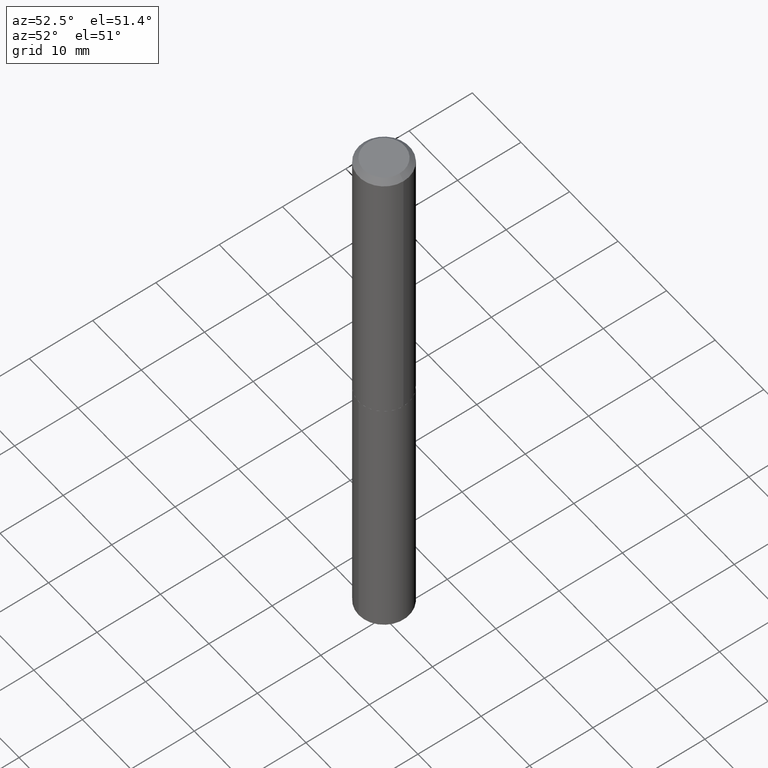
[diagram: clean part render]
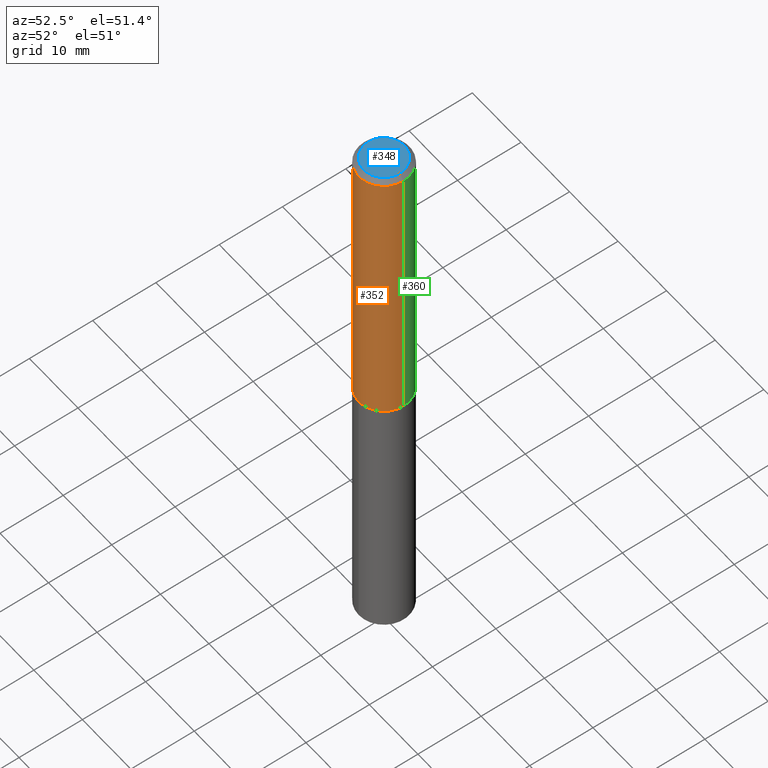
[diagram: same view with three faces highlighted in distinct colors, each labeled with its STEP entity id]
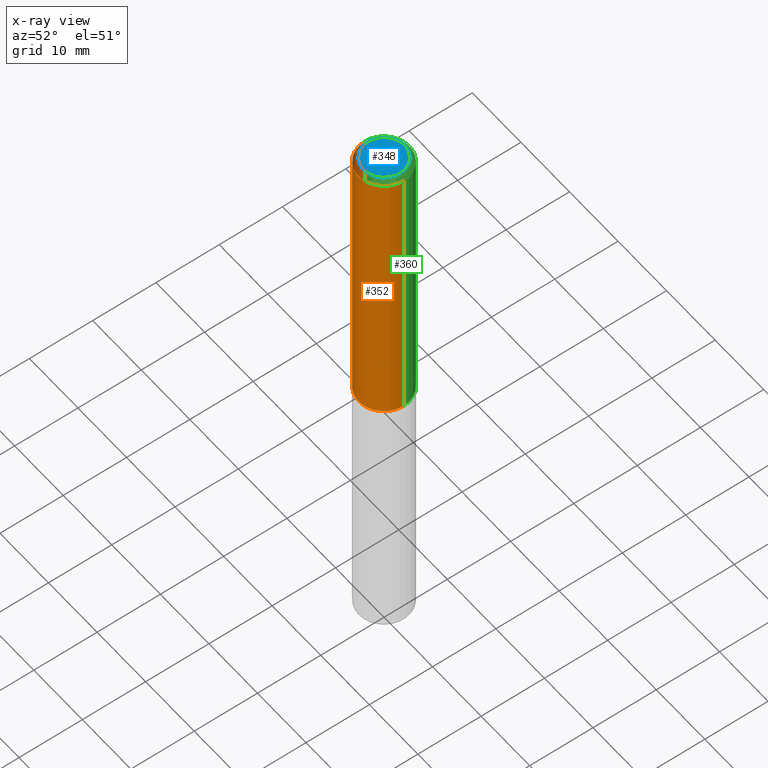
[diagram: x-ray of the same camera — body ghosted, the three highlighted faces saturated]
A machine part, auxiliary view with three faces highlighted in distinct colors.
The next image is the same camera in x-ray (body ghosted, the three faces saturated) — at least one of them is partly hidden behind the body in this view.
Their STEP definitions:

[orange] entity #352 — the highlighted cylindrical surface (edge-blend (fillet) strip) has radius 4.0005 mm, axis along (-0, 0, 1).
#18 = DIRECTION ( 'NONE',  ( -2.445468806185136597E-29, 3.491481338843145583E-15, 1.000000000000000000 ) ) ;
#23 = AXIS2_PLACEMENT_3D ( 'NONE', #305, #269, #200 ) ;
#33 = CARTESIAN_POINT ( 'NONE',  ( -0.1575000000000001954, -5.202571303287241189E-15, -1.810600000000000431 ) ) ;
#40 = EDGE_CURVE ( 'NONE', #128, #203, #144, .T. ) ;
#62 = EDGE_CURVE ( 'NONE', #331, #128, #141, .T. ) ;
#63 = DIRECTION ( 'NONE',  ( 1.000000000000000000, -6.982962677686265922E-15, 0.000000000000000000 ) ) ;
#86 = CARTESIAN_POINT ( 'NONE',  ( 0.1575000000000000011, -1.208925413574435989E-15, -0.03125000000000020123 ) ) ;
#128 = VERTEX_POINT ( 'NONE', #329 ) ;
#135 = DIRECTION ( 'NONE',  ( -2.445468806185136597E-29, 3.491481338843145583E-15, 1.000000000000000000 ) ) ;
#141 = LINE ( 'NONE', #355, #361 ) ;
#144 = CIRCLE ( 'NONE', #195, 0.1575000000000000011 ) ;
#176 = FACE_OUTER_BOUND ( 'NONE', #178, .T. ) ;
#178 = EDGE_LOOP ( 'NONE', ( #357, #241, #215, #227 ) ) ;
#191 = DIRECTION ( 'NONE',  ( -2.445468806185136877E-29, 3.491481338843145188E-15, 1.000000000000000000 ) ) ;
#195 = AXIS2_PLACEMENT_3D ( 'NONE', #283, #18, #378 ) ;
#200 = DIRECTION ( 'NONE',  ( 1.000000000000000000, -6.982962677686267499E-15, 4.876176775795936353E-29 ) ) ;
#203 = VERTEX_POINT ( 'NONE', #86 ) ;
#205 = AXIS2_PLACEMENT_3D ( 'NONE', #333, #135, #63 ) ;
#214 = EDGE_CURVE ( 'NONE', #331, #254, #368, .T. ) ;
#215 = ORIENTED_EDGE ( 'NONE', *, *, #306, .T. ) ;
#227 = ORIENTED_EDGE ( 'NONE', *, *, #40, .F. ) ;
#240 = CYLINDRICAL_SURFACE ( 'NONE', #23, 0.1575000000000000844 ) ;
#241 = ORIENTED_EDGE ( 'NONE', *, *, #214, .T. ) ;
#244 = VECTOR ( 'NONE', #366, 39.37007874015748143 ) ;
#254 = VERTEX_POINT ( 'NONE', #311 ) ;
#269 = DIRECTION ( 'NONE',  ( -2.445468806185136597E-29, 3.491481338843145583E-15, 1.000000000000000000 ) ) ;
#275 = LINE ( 'NONE', #370, #244 ) ;
#283 = CARTESIAN_POINT ( 'NONE',  ( 7.642090019328601786E-31, -1.091087918388490144E-16, -0.03125000000000020123 ) ) ;
#305 = CARTESIAN_POINT ( 'NONE',  ( 0.000000000000000000, 0.000000000000000000, 0.000000000000000000 ) ) ;
#306 = EDGE_CURVE ( 'NONE', #254, #203, #275, .T. ) ;
#311 = CARTESIAN_POINT ( 'NONE',  ( 0.1575000000000001954, -7.421492733844987850E-15, -1.810600000000000431 ) ) ;
#329 = CARTESIAN_POINT ( 'NONE',  ( -0.1575000000000000011, -2.096287643151965949E-15, -0.03125000000000020123 ) ) ;
#331 = VERTEX_POINT ( 'NONE', #33 ) ;
#333 = CARTESIAN_POINT ( 'NONE',  ( 4.427765820478809342E-29, -6.321676112109400370E-15, -1.810600000000000431 ) ) ;
#352 = ADVANCED_FACE ( 'NONE', ( #176 ), #240, .T. ) ;
#355 = CARTESIAN_POINT ( 'NONE',  ( -0.1575000000000000844, 1.119104808822158392E-15, -7.747322767151481189E-30 ) ) ;
#357 = ORIENTED_EDGE ( 'NONE', *, *, #62, .F. ) ;
#361 = VECTOR ( 'NONE', #191, 39.37007874015748143 ) ;
#366 = DIRECTION ( 'NONE',  ( -2.445468806185136877E-29, 3.491481338843145188E-15, 1.000000000000000000 ) ) ;
#368 = CIRCLE ( 'NONE', #205, 0.1575000000000001954 ) ;
#370 = CARTESIAN_POINT ( 'NONE',  ( 0.1575000000000000844, -1.099816621735587677E-15, 7.679978421878603638E-30 ) ) ;
#378 = DIRECTION ( 'NONE',  ( 1.000000000000000000, -6.982962677686265922E-15, 0.000000000000000000 ) ) ;

[blue] entity #348 — the highlighted planar face has unit normal (0, -0, -1).
#14 = DIRECTION ( 'NONE',  ( 2.438088387897960049E-29, -3.491481338843145188E-15, -1.000000000000000000 ) ) ;
#32 = CARTESIAN_POINT ( 'NONE',  ( -1.179965205088274384E-46, 1.684677589683407292E-32, 4.825108388640570813E-18 ) ) ;
#44 = CIRCLE ( 'NONE', #113, 0.1262499999999999734 ) ;
#53 = CARTESIAN_POINT ( 'NONE',  ( -0.1262499999999999734, 9.361534339773144209E-16, 4.825108388634215244E-18 ) ) ;
#65 = CARTESIAN_POINT ( 'NONE',  ( -5.899826025441371921E-47, 8.423387948417036461E-33, 2.412554194320285406E-18 ) ) ;
#67 = PLANE ( 'NONE',  #259 ) ;
#72 = VERTEX_POINT ( 'NONE', #53 ) ;
#88 = DIRECTION ( 'NONE',  ( -2.445468806185136597E-29, 3.491481338843145583E-15, 1.000000000000000000 ) ) ;
#92 = DIRECTION ( 'NONE',  ( 1.000000000000000000, -6.982962677686267499E-15, 4.876009584780190244E-29 ) ) ;
#106 = CIRCLE ( 'NONE', #316, 0.1262499999999999734 ) ;
#113 = AXIS2_PLACEMENT_3D ( 'NONE', #334, #88, #92 ) ;
#147 = EDGE_LOOP ( 'NONE', ( #184, #337 ) ) ;
#148 = CARTESIAN_POINT ( 'NONE',  ( 0.1262499999999999734, -1.027887549353260543E-15, 4.825108388647246856E-18 ) ) ;
#175 = DIRECTION ( 'NONE',  ( -1.000000000000000000, 6.982962677686265922E-15, -4.876176775795935793E-29 ) ) ;
#184 = ORIENTED_EDGE ( 'NONE', *, *, #343, .T. ) ;
#199 = DIRECTION ( 'NONE',  ( -2.445468806185136597E-29, 3.491481338843145583E-15, 1.000000000000000000 ) ) ;
#250 = VERTEX_POINT ( 'NONE', #148 ) ;
#259 = AXIS2_PLACEMENT_3D ( 'NONE', #65, #14, #175 ) ;
#304 = FACE_OUTER_BOUND ( 'NONE', #147, .T. ) ;
#316 = AXIS2_PLACEMENT_3D ( 'NONE', #32, #199, #335 ) ;
#321 = EDGE_CURVE ( 'NONE', #250, #72, #106, .T. ) ;
#334 = CARTESIAN_POINT ( 'NONE',  ( -1.179965205088274384E-46, 1.684677589683407292E-32, 4.825108388640570813E-18 ) ) ;
#335 = DIRECTION ( 'NONE',  ( 1.000000000000000000, -6.982962677686267499E-15, 4.876009584780190244E-29 ) ) ;
#337 = ORIENTED_EDGE ( 'NONE', *, *, #321, .T. ) ;
#343 = EDGE_CURVE ( 'NONE', #72, #250, #44, .T. ) ;
#348 = ADVANCED_FACE ( 'NONE', ( #304 ), #67, .F. ) ;

[green] entity #360 — the highlighted cylindrical surface (edge-blend (fillet) strip) has radius 4.0005 mm, axis along (-0, 0, 1).
#9 = ORIENTED_EDGE ( 'NONE', *, *, #320, .T. ) ;
#33 = CARTESIAN_POINT ( 'NONE',  ( -0.1575000000000001954, -5.202571303287241189E-15, -1.810600000000000431 ) ) ;
#38 = FACE_OUTER_BOUND ( 'NONE', #265, .T. ) ;
#51 = AXIS2_PLACEMENT_3D ( 'NONE', #268, #152, #123 ) ;
#58 = CIRCLE ( 'NONE', #51, 0.1575000000000000011 ) ;
#62 = EDGE_CURVE ( 'NONE', #331, #128, #141, .T. ) ;
#66 = CIRCLE ( 'NONE', #353, 0.1575000000000001954 ) ;
#69 = DIRECTION ( 'NONE',  ( 1.000000000000000000, -6.982962677686265922E-15, 0.000000000000000000 ) ) ;
#78 = ORIENTED_EDGE ( 'NONE', *, *, #306, .F. ) ;
#86 = CARTESIAN_POINT ( 'NONE',  ( 0.1575000000000000011, -1.208925413574435989E-15, -0.03125000000000020123 ) ) ;
#93 = DIRECTION ( 'NONE',  ( -2.445468806185136597E-29, 3.491481338843145583E-15, 1.000000000000000000 ) ) ;
#123 = DIRECTION ( 'NONE',  ( 1.000000000000000000, -6.982962677686265922E-15, 0.000000000000000000 ) ) ;
#128 = VERTEX_POINT ( 'NONE', #329 ) ;
#141 = LINE ( 'NONE', #355, #361 ) ;
#142 = ORIENTED_EDGE ( 'NONE', *, *, #260, .F. ) ;
#152 = DIRECTION ( 'NONE',  ( -2.445468806185136597E-29, 3.491481338843145583E-15, 1.000000000000000000 ) ) ;
#153 = CARTESIAN_POINT ( 'NONE',  ( 0.000000000000000000, 0.000000000000000000, 0.000000000000000000 ) ) ;
#173 = AXIS2_PLACEMENT_3D ( 'NONE', #153, #93, #179 ) ;
#174 = DIRECTION ( 'NONE',  ( -2.445468806185136597E-29, 3.491481338843145583E-15, 1.000000000000000000 ) ) ;
#179 = DIRECTION ( 'NONE',  ( 1.000000000000000000, -6.982962677686267499E-15, 4.876176775795936353E-29 ) ) ;
#191 = DIRECTION ( 'NONE',  ( -2.445468806185136877E-29, 3.491481338843145188E-15, 1.000000000000000000 ) ) ;
#203 = VERTEX_POINT ( 'NONE', #86 ) ;
#242 = CARTESIAN_POINT ( 'NONE',  ( 4.427765820478809342E-29, -6.321676112109400370E-15, -1.810600000000000431 ) ) ;
#244 = VECTOR ( 'NONE', #366, 39.37007874015748143 ) ;
#254 = VERTEX_POINT ( 'NONE', #311 ) ;
#256 = ORIENTED_EDGE ( 'NONE', *, *, #62, .T. ) ;
#260 = EDGE_CURVE ( 'NONE', #203, #128, #58, .T. ) ;
#265 = EDGE_LOOP ( 'NONE', ( #9, #256, #142, #78 ) ) ;
#268 = CARTESIAN_POINT ( 'NONE',  ( 7.642090019328601786E-31, -1.091087918388490144E-16, -0.03125000000000020123 ) ) ;
#275 = LINE ( 'NONE', #370, #244 ) ;
#306 = EDGE_CURVE ( 'NONE', #254, #203, #275, .T. ) ;
#311 = CARTESIAN_POINT ( 'NONE',  ( 0.1575000000000001954, -7.421492733844987850E-15, -1.810600000000000431 ) ) ;
#320 = EDGE_CURVE ( 'NONE', #254, #331, #66, .T. ) ;
#329 = CARTESIAN_POINT ( 'NONE',  ( -0.1575000000000000011, -2.096287643151965949E-15, -0.03125000000000020123 ) ) ;
#331 = VERTEX_POINT ( 'NONE', #33 ) ;
#353 = AXIS2_PLACEMENT_3D ( 'NONE', #242, #174, #69 ) ;
#355 = CARTESIAN_POINT ( 'NONE',  ( -0.1575000000000000844, 1.119104808822158392E-15, -7.747322767151481189E-30 ) ) ;
#360 = ADVANCED_FACE ( 'NONE', ( #38 ), #371, .T. ) ;
#361 = VECTOR ( 'NONE', #191, 39.37007874015748143 ) ;
#366 = DIRECTION ( 'NONE',  ( -2.445468806185136877E-29, 3.491481338843145188E-15, 1.000000000000000000 ) ) ;
#370 = CARTESIAN_POINT ( 'NONE',  ( 0.1575000000000000844, -1.099816621735587677E-15, 7.679978421878603638E-30 ) ) ;
#371 = CYLINDRICAL_SURFACE ( 'NONE', #173, 0.1575000000000000844 ) ;